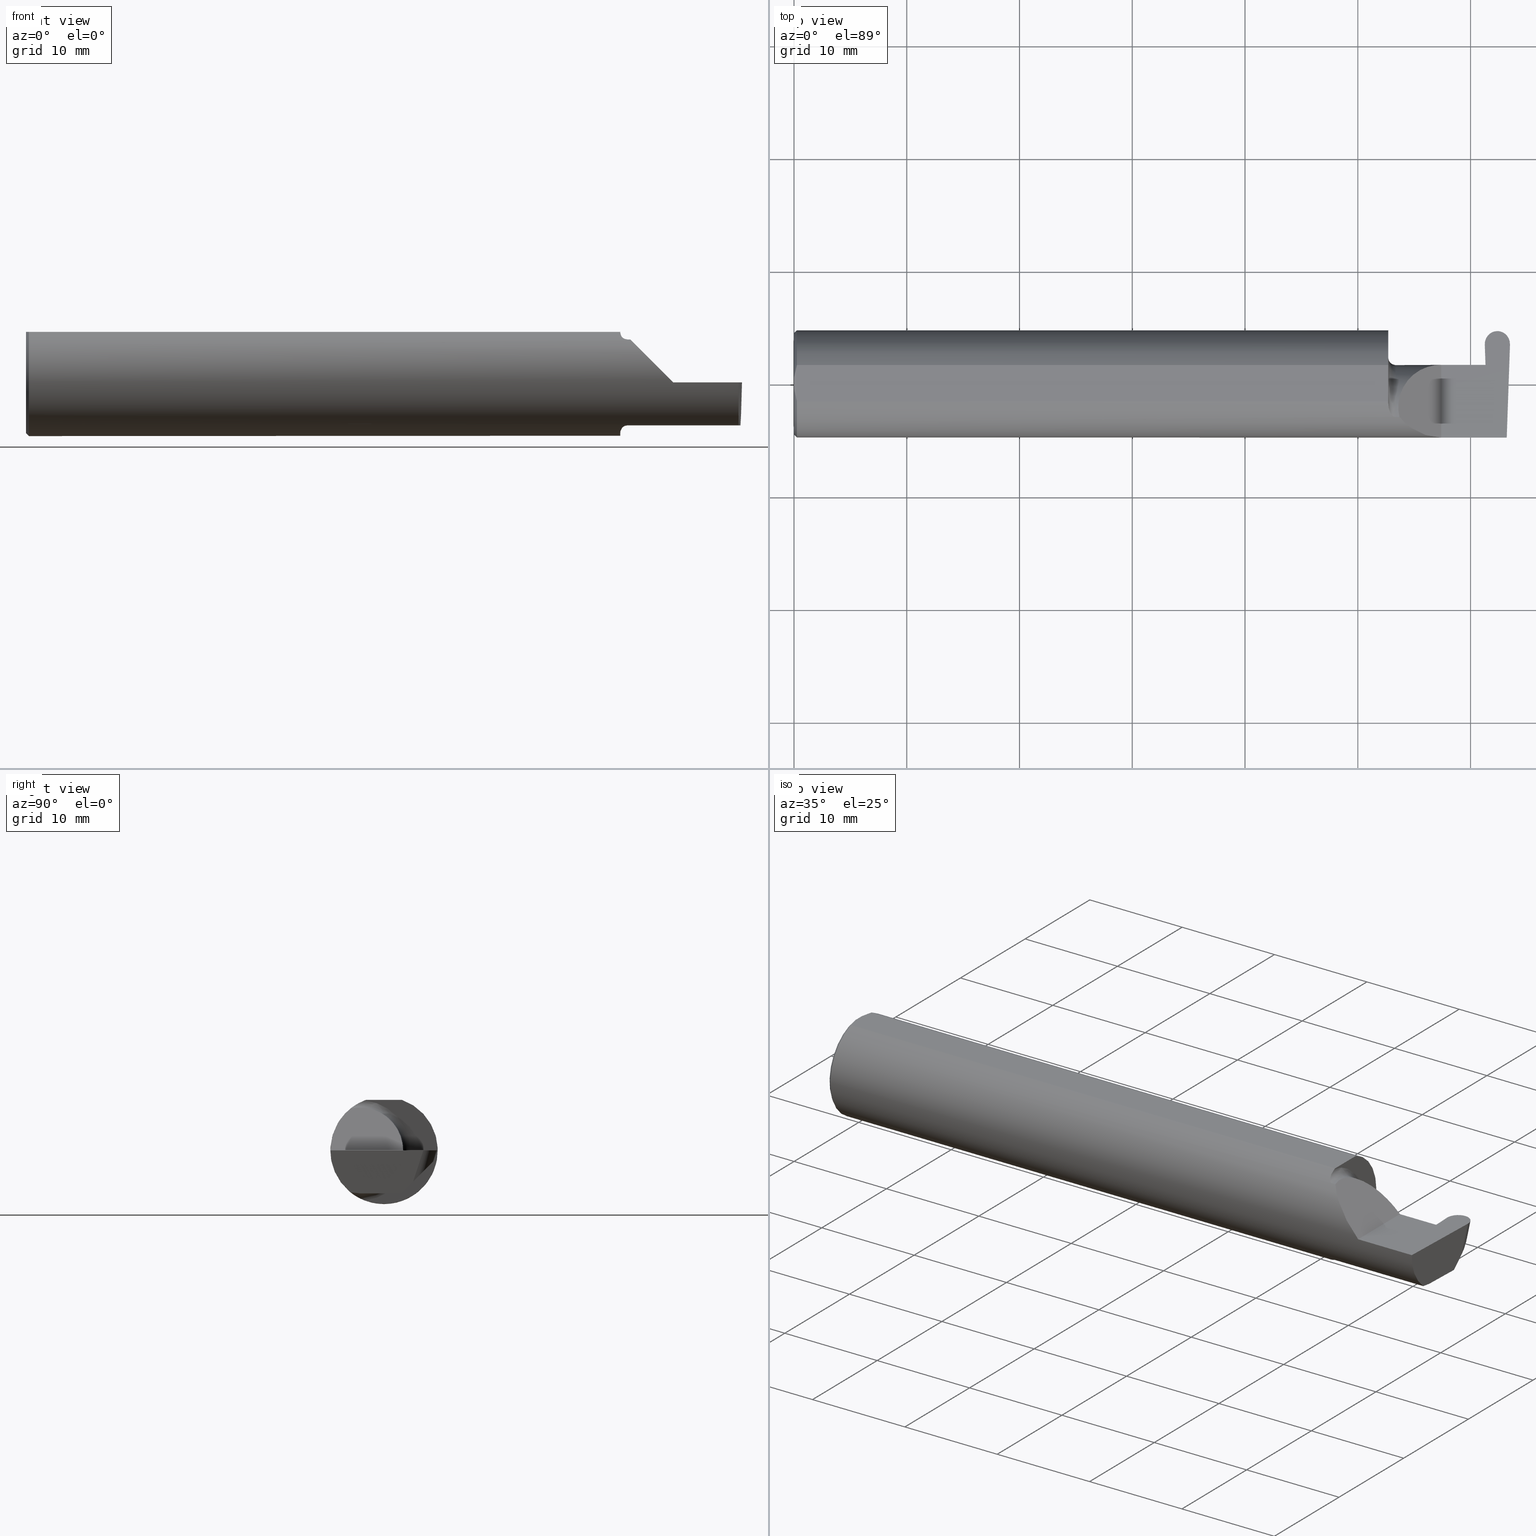
[diagram: canonical four-view strip — front | top / right | iso, engineering-drawing reading convention]
A machine part, canonical four-view strip (front | top / right | iso — engineering-drawing reading convention). The complete STEP part file that produces these views, byte-faithful:
ISO-10303-21;
HEADER;
FILE_DESCRIPTION (( 'STEP AP203' ),
    '1' );
FILE_NAME ('222191-GFR087-6.STEP',
    '2024-06-28T18:14:54',
    ( '' ),
    ( '' ),
    'SwSTEP 2.0',
    'SolidWorks 2024',
    '' );
FILE_SCHEMA (( 'CONFIG_CONTROL_DESIGN' ));
ENDSEC;

DATA;
#1 = EDGE_LOOP ( 'NONE', ( #204, #426, #313, #60, #416, #489 ) ) ;
#2 = APPROVAL_ROLE ( '' ) ;
#3 = CARTESIAN_POINT ( 'NONE',  ( 2.075000000000000178, 0.000000000000000000, 0.000000000000000000 ) ) ;
#4 = VERTEX_POINT ( 'NONE', #648 ) ;
#5 = VECTOR ( 'NONE', #589, 39.37007874015748143 ) ;
#6 = FACE_OUTER_BOUND ( 'NONE', #680, .T. ) ;
#7 = EDGE_CURVE ( 'NONE', #435, #216, #571, .T. ) ;
#8 = CYLINDRICAL_SURFACE ( 'NONE', #538, 0.1500000000000000500 ) ;
#9 = DIRECTION ( 'NONE',  ( 0.000000000000000000, -0.7071067811865516806, 0.7071067811865434649 ) ) ;
#10 = DIRECTION ( 'NONE',  ( -0.03701744261649800999, 0.7066221440565398915, 0.7066221440565479961 ) ) ;
#11 =( BOUNDED_CURVE ( )  B_SPLINE_CURVE ( 3, ( #493, #221, #659, #61 ),
 .UNSPECIFIED., .F., .T. ) 
 B_SPLINE_CURVE_WITH_KNOTS ( ( 4, 4 ),
 ( 4.712388980384686121, 4.728033103810989068 ),
 .UNSPECIFIED. ) 
 CURVE ( )  GEOMETRIC_REPRESENTATION_ITEM ( )  RATIONAL_B_SPLINE_CURVE ( ( 1.000000000000000000, 0.9999796052208393959, 0.9999796052208393959, 1.000000000000000000 ) ) 
 REPRESENTATION_ITEM ( '' )  );
#12 = VECTOR ( 'NONE', #194, 39.37007874015748143 ) ;
#13 = ADVANCED_FACE ( 'NONE', ( #322 ), #546, .F. ) ;
#14 = CARTESIAN_POINT ( 'NONE',  ( 2.499906297085412898, 0.1370998259008695541, 0.000000000000000000 ) ) ;
#15 = PERSON ( 'UNSPECIFIED', 'UNSPECIFIED', 'UNSPECIFIED', ('UNSPECIFIED'), ('UNSPECIFIED'), ('UNSPECIFIED') ) ;
#16 = CARTESIAN_POINT ( 'NONE',  ( 2.074999999999999289, -0.07367581953296699349, 0.1723443821957854893 ) ) ;
#17 = ORIENTED_EDGE ( 'NONE', *, *, #529, .F. ) ;
#18 = CARTESIAN_POINT ( 'NONE',  ( 2.481911186719436557, 0.1716605914559111712, -0.03864246008723843523 ) ) ;
#19 = CARTESIAN_POINT ( 'NONE',  ( 2.260000000000000231, 0.06665000000000002867, 5.204748896376251932E-17 ) ) ;
#20 = ORIENTED_EDGE ( 'NONE', *, *, #71, .F. ) ;
#21 = CONICAL_SURFACE ( 'NONE', #247, 0.1773500000000005072, 0.7853981633974551624 ) ;
#22 = VECTOR ( 'NONE', #610, 39.37007874015748854 ) ;
#23 = CARTESIAN_POINT ( 'NONE',  ( 2.488815404197634251, -0.1061291577212408049, -0.1486999626928446339 ) ) ;
#24 = CARTESIAN_POINT ( 'NONE',  ( 2.075000000000000178, 0.1873499999999999055, 0.000000000000000000 ) ) ;
#25 = ADVANCED_FACE ( 'NONE', ( #6 ), #551, .T. ) ;
#26 = ORIENTED_EDGE ( 'NONE', *, *, #690, .F. ) ;
#27 = CARTESIAN_POINT ( 'NONE',  ( 2.496782013450319582, 0.1018667288808076665, -0.1084363226623427101 ) ) ;
#28 = LINE ( 'NONE', #593, #583 ) ;
#29 = ORIENTED_EDGE ( 'NONE', *, *, #62, .T. ) ;
#30 = CARTESIAN_POINT ( 'NONE',  ( 2.075000000000000178, 0.06655862405286419592, -0.005234924505381327239 ) ) ;
#31 = CARTESIAN_POINT ( 'NONE',  ( 2.075000000000000178, -0.06851976604679065053, -0.1743704796142198643 ) ) ;
#32 = ORIENTED_EDGE ( 'NONE', *, *, #543, .F. ) ;
#33 = DIRECTION ( 'NONE',  ( 0.9998367324388628408, 0.0003153570480505056822, 0.01806679318280295793 ) ) ;
#34 = EDGE_CURVE ( 'NONE', #684, #104, #383, .T. ) ;
#35 = AXIS2_PLACEMENT_3D ( 'NONE', #619, #74, #131 ) ;
#36 = CARTESIAN_POINT ( 'NONE',  ( 2.075358271039144054, -0.07873626113568081564, -0.1700887912276895508 ) ) ;
#37 = ORIENTED_EDGE ( 'NONE', *, *, #370, .F. ) ;
#38 = CARTESIAN_POINT ( 'NONE',  ( 2.411832552795360574, 0.1390138764844879860, 0.000000000000000000 ) ) ;
#39 = B_SPLINE_CURVE_WITH_KNOTS ( 'NONE', 3,
 ( #676, #615, #394, #77 ),
 .UNSPECIFIED., .F., .F.,
 ( 4, 4 ),
 ( 0.000000000000000000, 1.000000000000000000 ),
 .UNSPECIFIED. ) ;
#40 = DIRECTION ( 'NONE',  ( 0.000000000000000000, 0.000000000000000000, 1.000000000000000000 ) ) ;
#41 = CARTESIAN_POINT ( 'NONE',  ( 2.415998328610626800, 0.06357628547474560021, -0.09063792740366215239 ) ) ;
#42 = DATE_AND_TIME ( #98, #137 ) ;
#43 = CARTESIAN_POINT ( 'NONE',  ( 0.000000000000000000, 0.000000000000000000, 0.000000000000000000 ) ) ;
#44 = ORIENTED_EDGE ( 'NONE', *, *, #222, .F. ) ;
#45 = EDGE_CURVE ( 'NONE', #46, #203, #651, .T. ) ;
#46 = VERTEX_POINT ( 'NONE', #14 ) ;
#47 = COORDINATED_UNIVERSAL_TIME_OFFSET ( 8, 0, .BEHIND. ) ;
#48 = ORGANIZATION ( 'UNSPECIFIED', 'UNSPECIFIED', '' ) ;
#49 = VECTOR ( 'NONE', #444, 39.37007874015748143 ) ;
#50 = DIMENSIONAL_EXPONENTS ( 1.000000000000000000, 0.000000000000000000, 0.000000000000000000, 0.000000000000000000, 0.000000000000000000, 0.000000000000000000, 0.000000000000000000 ) ;
#51 = CARTESIAN_POINT ( 'NONE',  ( 2.455849646417702203, 0.1388183738650295151, 0.001331749772420890180 ) ) ;
#52 = ORIENTED_EDGE ( 'NONE', *, *, #87, .F. ) ;
#53 = ORIENTED_EDGE ( 'NONE', *, *, #465, .T. ) ;
#54 = PERSON_AND_ORGANIZATION ( #15, #48 ) ;
#55 = DIRECTION ( 'NONE',  ( -0.03489949670249319069, -0.9993908270190959842, 0.000000000000000000 ) ) ;
#56 = ORIENTED_EDGE ( 'NONE', *, *, #87, .T. ) ;
#57 = VERTEX_POINT ( 'NONE', #376 ) ;
#58 = COORDINATED_UNIVERSAL_TIME_OFFSET ( 8, 0, .BEHIND. ) ;
#59 = LINE ( 'NONE', #565, #290 ) ;
#60 = ORIENTED_EDGE ( 'NONE', *, *, #68, .T. ) ;
#61 = CARTESIAN_POINT ( 'NONE',  ( 2.455902844999999779, 0.1722946655495198598, -0.03800838599362974662 ) ) ;
#62 = EDGE_CURVE ( 'NONE', #84, #590, #170, .T. ) ;
#63 = TOROIDAL_SURFACE ( 'NONE', #374, 0.1749999999999999889, 0.02499999999999993894 ) ;
#64 =( BOUNDED_CURVE ( )  B_SPLINE_CURVE ( 3, ( #124, #484, #375, #558 ),
 .UNSPECIFIED., .F., .T. ) 
 B_SPLINE_CURVE_WITH_KNOTS ( ( 4, 4 ),
 ( 6.055147272130142255, 7.853981633974482790 ),
 .UNSPECIFIED. ) 
 CURVE ( )  GEOMETRIC_REPRESENTATION_ITEM ( )  RATIONAL_B_SPLINE_CURVE ( ( 1.000000000000000000, 0.7480442670255268434, 0.7480442670255268434, 1.000000000000000000 ) ) 
 REPRESENTATION_ITEM ( '' )  );
#65 = DIRECTION ( 'NONE',  ( 0.000000000000000000, 0.000000000000000000, -1.000000000000000000 ) ) ;
#66 = CARTESIAN_POINT ( 'NONE',  ( 2.497044125482537957, 0.1068701584290903256, -0.1034328931140599817 ) ) ;
#67 = CARTESIAN_POINT ( 'NONE',  ( 0.000000000000000000, 0.01880691362239451242, 0.1763499999999999235 ) ) ;
#68 = EDGE_CURVE ( 'NONE', #621, #84, #331, .T. ) ;
#69 = LINE ( 'NONE', #498, #391 ) ;
#70 = LINE ( 'NONE', #379, #318 ) ;
#71 = EDGE_CURVE ( 'NONE', #621, #46, #611, .T. ) ;
#72 = CARTESIAN_POINT ( 'NONE',  ( 2.097161949849308371, -0.1172600179964061184, 0.1461167706989260073 ) ) ;
#73 = ORIENTED_EDGE ( 'NONE', *, *, #7, .T. ) ;
#74 = DIRECTION ( 'NONE',  ( -0.7071067811865441310, 0.000000000000000000, -0.7071067811865510144 ) ) ;
#75 = CARTESIAN_POINT ( 'NONE',  ( 2.456309424548497322, 0.1846500000000000363, 0.000000000000000000 ) ) ;
#76 = ORIENTED_EDGE ( 'NONE', *, *, #650, .T. ) ;
#77 = CARTESIAN_POINT ( 'NONE',  ( 2.405238904245578624, 0.06664999999999991764, 0.000000000000000000 ) ) ;
#78 = EDGE_CURVE ( 'NONE', #167, #57, #207, .T. ) ;
#79 = CARTESIAN_POINT ( 'NONE',  ( 2.410932386210230760, 0.1647912748130948291, 1.110789957736176039E-17 ) ) ;
#80 = ORIENTED_EDGE ( 'NONE', *, *, #552, .F. ) ;
#81 = AXIS2_PLACEMENT_3D ( 'NONE', #3, #348, #301 ) ;
#82 = CARTESIAN_POINT ( 'NONE',  ( 2.075000000000000178, 0.06665000000000002867, 5.204748896376251932E-17 ) ) ;
#83 = CARTESIAN_POINT ( 'NONE',  ( 2.077945243422983701, -0.09312071749437419999, 0.1626553472577906279 ) ) ;
#84 = VERTEX_POINT ( 'NONE', #492 ) ;
#85 = DIRECTION ( 'NONE',  ( 0.000000000000000000, -0.9998476951563912696, 0.01745240643728358451 ) ) ;
#86 = CARTESIAN_POINT ( 'NONE',  ( -0.001039370078740541395, 0.1846500000000000363, 0.000000000000000000 ) ) ;
#87 = EDGE_CURVE ( 'NONE', #129, #414, #11, .T. ) ;
#88 = VERTEX_POINT ( 'NONE', #67 ) ;
#89 = CARTESIAN_POINT ( 'NONE',  ( 0.000000000000000000, 0.000000000000000000, -0.1773500000000005072 ) ) ;
#90 = CARTESIAN_POINT ( 'NONE',  ( 0.000000000000000000, -0.06325108694718235836, 0.1763499999999999235 ) ) ;
#91 = ORIENTED_EDGE ( 'NONE', *, *, #494, .F. ) ;
#92 = APPROVAL_DATE_TIME ( #580, #618 ) ;
#93 = FACE_OUTER_BOUND ( 'NONE', #447, .T. ) ;
#94 = CC_DESIGN_PERSON_AND_ORGANIZATION_ASSIGNMENT ( #524, #368, ( #467 ) ) ;
#95 = VECTOR ( 'NONE', #324, 39.37007874015748143 ) ;
#96 = CARTESIAN_POINT ( 'NONE',  ( -0.001039370078740541395, 0.1846500000000000363, 0.000000000000000000 ) ) ;
#97 = ORIENTED_EDGE ( 'NONE', *, *, #412, .T. ) ;
#98 = CALENDAR_DATE ( 2024, 28, 6 ) ;
#99 = CARTESIAN_POINT ( 'NONE',  ( 0.001595548104417217512, -0.03385300050298979679, 0.1763499999999999235 ) ) ;
#100 = ORIENTED_EDGE ( 'NONE', *, *, #552, .T. ) ;
#101 =( NAMED_UNIT ( * ) PLANE_ANGLE_UNIT ( ) SI_UNIT ( $, .RADIAN. ) );
#102 = EDGE_CURVE ( 'NONE', #229, #564, #224, .T. ) ;
#103 = DIRECTION ( 'NONE',  ( -0.9992386149554828290, 0.03489418134010589118, 0.01745240643728358451 ) ) ;
#104 = VERTEX_POINT ( 'NONE', #556 ) ;
#105 = ORIENTED_EDGE ( 'NONE', *, *, #78, .F. ) ;
#106 = PERSON_AND_ORGANIZATION ( #15, #48 ) ;
#107 = VECTOR ( 'NONE', #508, 39.37007874015748143 ) ;
#108 = AXIS2_PLACEMENT_3D ( 'NONE', #173, #440, #660 ) ;
#109 = CARTESIAN_POINT ( 'NONE',  ( 2.077960551809339584, -0.09317341542745739835, -0.1626248379125196653 ) ) ;
#110 = ORIENTED_EDGE ( 'NONE', *, *, #515, .T. ) ;
#111 = APPLICATION_PROTOCOL_DEFINITION ( 'international standard', 'config_control_design', 1994, #448 ) ;
#112 = CARTESIAN_POINT ( 'NONE',  ( 2.414359555045604289, 0.06664999999999991764, -9.645561665750322649E-21 ) ) ;
#113 = ORIENTED_EDGE ( 'NONE', *, *, #274, .F. ) ;
#114 = DIRECTION ( 'NONE',  ( -1.000000000000000000, -0.000000000000000000, -0.000000000000000000 ) ) ;
#115 = ADVANCED_FACE ( 'NONE', ( #270 ), #8, .T. ) ;
#116 = CARTESIAN_POINT ( 'NONE',  ( 2.075000000000000178, 0.000000000000000000, 0.000000000000000000 ) ) ;
#117 = APPROVAL ( #158, 'UNSPECIFIED' ) ;
#118 = VECTOR ( 'NONE', #666, 39.37007874015748143 ) ;
#119 = AXIS2_PLACEMENT_3D ( 'NONE', #442, #495, #665 ) ;
#120 = CARTESIAN_POINT ( 'NONE',  ( 2.489884857891535574, -0.07485379416751689052, -0.1500000000000000500 ) ) ;
#121 = EDGE_CURVE ( 'NONE', #203, #129, #70, .T. ) ;
#122 = DIRECTION ( 'NONE',  ( -1.000000000000000000, -5.069406624455083742E-17, -0.000000000000000000 ) ) ;
#123 = CARTESIAN_POINT ( 'NONE',  ( 2.499922542640338197, 0.1372830298860648612, 0.0005638438891804186011 ) ) ;
#124 = CARTESIAN_POINT ( 'NONE',  ( 2.113883229301068312, -0.1172600179964006784, 0.1461167706989302539 ) ) ;
#125 = CARTESIAN_POINT ( 'NONE',  ( 2.081287624083520527, -0.1021858045380145269, 0.1571187174372875861 ) ) ;
#126 = AXIS2_PLACEMENT_3D ( 'NONE', #43, #356, #371 ) ;
#127 = CARTESIAN_POINT ( 'NONE',  ( 2.202189699843949189, -0.1873500000000000998, 0.05781030015605102129 ) ) ;
#128 = PLANE ( 'NONE',  #639 ) ;
#129 = VERTEX_POINT ( 'NONE', #276 ) ;
#130 = EDGE_CURVE ( 'NONE', #531, #636, #404, .T. ) ;
#131 = DIRECTION ( 'NONE',  ( -0.7071067811865509034, 0.000000000000000000, 0.7071067811865440200 ) ) ;
#132 = CYLINDRICAL_SURFACE ( 'NONE', #582, 0.04399999999999999051 ) ;
#133 = VERTEX_POINT ( 'NONE', #603 ) ;
#134 = CARTESIAN_POINT ( 'NONE',  ( 2.414359555045604289, 0.06664999999999991764, 0.000000000000000000 ) ) ;
#135 = CARTESIAN_POINT ( 'NONE',  ( 0.001616639753276218755, 0.03405189565400963680, 0.1763499999999999235 ) ) ;
#136 = ORIENTED_EDGE ( 'NONE', *, *, #144, .T. ) ;
#137 = LOCAL_TIME ( 11, 14, 54.00000000000000000, #316 ) ;
#138 = LINE ( 'NONE', #200, #686 ) ;
#139 = EDGE_CURVE ( 'NONE', #4, #405, #438, .T. ) ;
#140 = PRODUCT_DEFINITION_SHAPE ( 'NONE', 'NONE',  #467 ) ;
#141 = LINE ( 'NONE', #459, #510 ) ;
#142 = EDGE_LOOP ( 'NONE', ( #17, #656, #372, #617 ) ) ;
#143 = CARTESIAN_POINT ( 'NONE',  ( 0.000000000000000000, 0.000000000000000000, -0.1773500000000005072 ) ) ;
#144 = EDGE_CURVE ( 'NONE', #157, #246, #382, .T. ) ;
#145 = DIRECTION ( 'NONE',  ( -1.000000000000000000, -5.069406624455083742E-17, -0.000000000000000000 ) ) ;
#146 = SECURITY_CLASSIFICATION_LEVEL ( 'unclassified' ) ;
#147 = CARTESIAN_POINT ( 'NONE',  ( 2.489588163846105484, -0.08335000000000003517, -0.1500000000000000500 ) ) ;
#148 = FACE_OUTER_BOUND ( 'NONE', #300, .T. ) ;
#149 =( NAMED_UNIT ( * ) SI_UNIT ( $, .STERADIAN. ) SOLID_ANGLE_UNIT ( ) );
#150 = CARTESIAN_POINT ( 'NONE',  ( 2.417363697998881733, -2.354248658836814556, -0.1239957194858760936 ) ) ;
#151 = AXIS2_PLACEMENT_3D ( 'NONE', #220, #9, #606 ) ;
#152 = CARTESIAN_POINT ( 'NONE',  ( 2.081304331342287650, -0.1022198306720689814, -0.1570962426853819704 ) ) ;
#153 = ORIENTED_EDGE ( 'NONE', *, *, #102, .F. ) ;
#154 = CALENDAR_DATE ( 2024, 28, 6 ) ;
#155 = EDGE_CURVE ( 'NONE', #133, #104, #669, .T. ) ;
#156 = FACE_OUTER_BOUND ( 'NONE', #542, .T. ) ;
#157 = VERTEX_POINT ( 'NONE', #327 ) ;
#158 = APPROVAL_STATUS ( 'not_yet_approved' ) ;
#159 = UNCERTAINTY_MEASURE_WITH_UNIT (LENGTH_MEASURE( 1.000000000000000082E-05 ), #162, 'distance_accuracy_value', 'NONE');
#160 = CARTESIAN_POINT ( 'NONE',  ( 2.090028532764138358, -0.1137241120808234196, -0.1488947809299404346 ) ) ;
#161 = ORIENTED_EDGE ( 'NONE', *, *, #78, .T. ) ;
#162 =( CONVERSION_BASED_UNIT ( 'INCH', #457 ) LENGTH_UNIT ( ) NAMED_UNIT ( #50 ) );
#163 = AXIS2_PLACEMENT_3D ( 'NONE', #38, #251, #629 ) ;
#164 = ADVANCED_BREP_SHAPE_REPRESENTATION ( '222191-GFR087-6', ( #264, #674 ), #433 ) ;
#165 = CARTESIAN_POINT ( 'NONE',  ( 2.455902844999999779, 0.1722946655495198598, -0.03800838599362974662 ) ) ;
#166 = ADVANCED_FACE ( 'NONE', ( #184 ), #627, .T. ) ;
#167 = VERTEX_POINT ( 'NONE', #286 ) ;
#168 = DIRECTION ( 'NONE',  ( 0.000000000000000000, 0.000000000000000000, -1.000000000000000000 ) ) ;
#169 = ORIENTED_EDGE ( 'NONE', *, *, #34, .F. ) ;
#170 = LINE ( 'NONE', #120, #191 ) ;
#171 = CARTESIAN_POINT ( 'NONE',  ( 2.411832552795360574, 0.1390138764844879860, 0.000000000000000000 ) ) ;
#172 = LOCAL_TIME ( 11, 14, 54.00000000000000000, #58 ) ;
#173 = CARTESIAN_POINT ( 'NONE',  ( 0.000000000000000000, 0.000000000000000000, 0.000000000000000000 ) ) ;
#174 = CARTESIAN_POINT ( 'NONE',  ( 3.749399456654646757E-32, -0.1873499999999999610, 3.061616997868383634E-16 ) ) ;
#175 = CARTESIAN_POINT ( 'NONE',  ( 2.260000000000000231, -0.1873499999999999888, 2.939152317953647352E-17 ) ) ;
#176 = CARTESIAN_POINT ( 'NONE',  ( 0.000000000000000000, 0.01880691362239451242, 0.1763499999999999235 ) ) ;
#177 = DIRECTION ( 'NONE',  ( -1.000000000000000000, -0.000000000000000000, -0.000000000000000000 ) ) ;
#178 = CARTESIAN_POINT ( 'NONE',  ( 2.075353553376444893, -0.07868116735658677030, 0.1701139256562800295 ) ) ;
#179 = EDGE_CURVE ( 'NONE', #129, #133, #677, .T. ) ;
#180 = AXIS2_PLACEMENT_3D ( 'NONE', #150, #33, #418 ) ;
#181 = ORIENTED_EDGE ( 'NONE', *, *, #238, .T. ) ;
#182 = DIRECTION ( 'NONE',  ( -1.000000000000000000, -0.000000000000000000, -0.000000000000000000 ) ) ;
#183 = ORIENTED_EDGE ( 'NONE', *, *, #155, .T. ) ;
#184 = FACE_OUTER_BOUND ( 'NONE', #267, .T. ) ;
#185 = ORIENTED_EDGE ( 'NONE', *, *, #635, .T. ) ;
#186 = CARTESIAN_POINT ( 'NONE',  ( 2.487566561880238947, -0.1873499999999999610, -0.05781030015605118089 ) ) ;
#187 = EDGE_CURVE ( 'NONE', #531, #250, #232, .T. ) ;
#188 = CARTESIAN_POINT ( 'NONE',  ( 0.000000000000000000, 0.000000000000000000, 0.000000000000000000 ) ) ;
#189 = VERTEX_POINT ( 'NONE', #242 ) ;
#190 = AXIS2_PLACEMENT_3D ( 'NONE', #51, #630, #208 ) ;
#191 = VECTOR ( 'NONE', #226, 39.37007874015748143 ) ;
#192 = CARTESIAN_POINT ( 'NONE',  ( 2.488471823259917226, -0.1172600179964005951, -0.1461167706989303927 ) ) ;
#193 = EDGE_CURVE ( 'NONE', #46, #4, #141, .T. ) ;
#194 = DIRECTION ( 'NONE',  ( 1.000000000000000000, 0.000000000000000000, 0.000000000000000000 ) ) ;
#195 = VERTEX_POINT ( 'NONE', #299 ) ;
#196 = LINE ( 'NONE', #82, #107 ) ;
#197 = CARTESIAN_POINT ( 'NONE',  ( 0.000000000000000000, 0.000000000000000000, 0.000000000000000000 ) ) ;
#198 = ORIENTED_EDGE ( 'NONE', *, *, #369, .T. ) ;
#199 = PERSON_AND_ORGANIZATION_ROLE ( 'design_owner' ) ;
#200 = CARTESIAN_POINT ( 'NONE',  ( 0.000000000000000000, 0.1873499999999998500, 0.1763499999999999235 ) ) ;
#201 =( BOUNDED_CURVE ( )  B_SPLINE_CURVE ( 3, ( #577, #401, #186, #298 ),
 .UNSPECIFIED., .F., .F. ) 
 B_SPLINE_CURVE_WITH_KNOTS ( ( 4, 4 ),
 ( 5.852427379562185727, 6.746954780470634461 ),
 .UNSPECIFIED. ) 
 CURVE ( )  GEOMETRIC_REPRESENTATION_ITEM ( )  RATIONAL_B_SPLINE_CURVE ( ( 1.000000000000000000, 0.9344226172588800949, 0.9344226172588800949, 1.000000000000000000 ) ) 
 REPRESENTATION_ITEM ( '' )  );
#202 = PLANE ( 'NONE',  #450 ) ;
#203 = VERTEX_POINT ( 'NONE', #75 ) ;
#204 = ORIENTED_EDGE ( 'NONE', *, *, #102, .T. ) ;
#205 = COORDINATED_UNIVERSAL_TIME_OFFSET ( 8, 0, .BEHIND. ) ;
#206 = APPROVAL_PERSON_ORGANIZATION ( #106, #547, #632 ) ;
#207 = CIRCLE ( 'NONE', #479, 0.1873499999999999888 ) ;
#208 = DIRECTION ( 'NONE',  ( 0.000000000000000000, 0.9510565162951533091, -0.3090169943749481729 ) ) ;
#209 = ORIENTED_EDGE ( 'NONE', *, *, #690, .T. ) ;
#210 = VERTEX_POINT ( 'NONE', #570 ) ;
#211 = DIRECTION ( 'NONE',  ( -1.000000000000000000, -0.000000000000000000, -0.000000000000000000 ) ) ;
#212 = VERTEX_POINT ( 'NONE', #291 ) ;
#213 = PERSON_AND_ORGANIZATION_ROLE ( 'classification_officer' ) ;
#214 = DESIGN_CONTEXT ( 'detailed design', #448, 'design' ) ;
#215 = CARTESIAN_POINT ( 'NONE',  ( 2.414359555045604289, 0.06664999999999991764, -9.645561665750322649E-21 ) ) ;
#216 = VERTEX_POINT ( 'NONE', #511 ) ;
#217 = CARTESIAN_POINT ( 'NONE',  ( 2.100000000000000089, -0.08334999999999997966, 0.000000000000000000 ) ) ;
#218 = ORIENTED_EDGE ( 'NONE', *, *, #238, .F. ) ;
#219 = DIRECTION ( 'NONE',  ( 0.000000000000000000, -1.000000000000000000, 0.000000000000000000 ) ) ;
#220 = CARTESIAN_POINT ( 'NONE',  ( -0.001039370078740541395, 0.1723030515431495657, -0.03799999999999999906 ) ) ;
#221 = CARTESIAN_POINT ( 'NONE',  ( 2.455902844999999779, 0.1774764172755834701, -0.02207801745350155415 ) ) ;
#222 = EDGE_CURVE ( 'NONE', #88, #57, #431, .T. ) ;
#223 = AXIS2_PLACEMENT_3D ( 'NONE', #116, #500, #670 ) ;
#224 = LINE ( 'NONE', #668, #550 ) ;
#225 = DIRECTION ( 'NONE',  ( 0.000000000000000000, 0.000000000000000000, -1.000000000000000000 ) ) ;
#226 = DIRECTION ( 'NONE',  ( -0.03489949670249319069, -0.9993908270190959842, 0.000000000000000000 ) ) ;
#227 = CARTESIAN_POINT ( 'NONE',  ( 0.000000000000000000, 0.000000000000000000, 0.000000000000000000 ) ) ;
#228 = DIRECTION ( 'NONE',  ( 1.000000000000000000, 5.069406624455083742E-17, 0.000000000000000000 ) ) ;
#229 = VERTEX_POINT ( 'NONE', #518 ) ;
#230 = DIRECTION ( 'NONE',  ( 1.000000000000000000, -0.000000000000000000, -0.000000000000000000 ) ) ;
#231 = APPROVAL_PERSON_ORGANIZATION ( #311, #117, #2 ) ;
#232 = LINE ( 'NONE', #683, #699 ) ;
#233 = CC_DESIGN_PERSON_AND_ORGANIZATION_ASSIGNMENT ( #693, #199, ( #559 ) ) ;
#234 = AXIS2_PLACEMENT_3D ( 'NONE', #385, #437, #605 ) ;
#235 = EDGE_LOOP ( 'NONE', ( #535, #243, #198 ) ) ;
#236 = FACE_OUTER_BOUND ( 'NONE', #696, .T. ) ;
#237 = CARTESIAN_POINT ( 'NONE',  ( 0.005155213631852355663, 0.04890080824240217866, 0.1763499999999999235 ) ) ;
#238 = EDGE_CURVE ( 'NONE', #88, #575, #608, .T. ) ;
#239 = B_SPLINE_CURVE_WITH_KNOTS ( 'NONE', 3,
 ( #388, #16, #178, #613, #83, #125, #451, #295, #337, #560, #72, #392 ),
 .UNSPECIFIED., .F., .F.,
 ( 4, 2, 2, 2, 2, 4 ),
 ( 4.423516731080748054E-05, 0.0004615475116586697829, 0.0008788598560065321056, 0.001296172200354394483, 0.001504828372528325617, 0.001713484544702256751 ),
 .UNSPECIFIED. ) ;
#240 = ORIENTED_EDGE ( 'NONE', *, *, #384, .T. ) ;
#241 = LINE ( 'NONE', #134, #462 ) ;
#242 = CARTESIAN_POINT ( 'NONE',  ( 2.075000000000000178, -0.06325108694718283020, 0.1763499999999999235 ) ) ;
#243 = ORIENTED_EDGE ( 'NONE', *, *, #179, .T. ) ;
#244 = DIRECTION ( 'NONE',  ( -1.000000000000000000, -5.069406624455083742E-17, -0.000000000000000000 ) ) ;
#245 = DIRECTION ( 'NONE',  ( 0.000000000000000000, -0.9510565162951534202, 0.3090169943749482284 ) ) ;
#246 = VERTEX_POINT ( 'NONE', #31 ) ;
#247 = AXIS2_PLACEMENT_3D ( 'NONE', #197, #540, #256 ) ;
#248 = CARTESIAN_POINT ( 'NONE',  ( 2.489189135516857831, -0.09477667630339410565, -0.1500000000000000500 ) ) ;
#249 = CARTESIAN_POINT ( 'NONE',  ( 2.097174967710398796, -0.1172600179964006506, -0.1461167706989303927 ) ) ;
#250 = VERTEX_POINT ( 'NONE', #574 ) ;
#251 = DIRECTION ( 'NONE',  ( 0.9992386149554828290, 0.03489418134010670303, 0.01745240643728358798 ) ) ;
#252 = ADVANCED_FACE ( 'NONE', ( #403 ), #128, .F. ) ;
#253 = CARTESIAN_POINT ( 'NONE',  ( 2.405238904245578624, 0.06664999999999991764, 0.000000000000000000 ) ) ;
#254 = ORIENTED_EDGE ( 'NONE', *, *, #650, .F. ) ;
#255 = ORIENTED_EDGE ( 'NONE', *, *, #187, .T. ) ;
#256 = DIRECTION ( 'NONE',  ( 0.000000000000000000, 0.000000000000000000, -1.000000000000000000 ) ) ;
#257 = EDGE_LOOP ( 'NONE', ( #594, #218, #409, #105 ) ) ;
#258 = ORIENTED_EDGE ( 'NONE', *, *, #179, .F. ) ;
#259 = AXIS2_PLACEMENT_3D ( 'NONE', #695, #641, #168 ) ;
#260 = CARTESIAN_POINT ( 'NONE',  ( 0.000000000000000000, 0.000000000000000000, 0.000000000000000000 ) ) ;
#261 = VERTEX_POINT ( 'NONE', #19 ) ;
#262 = ORIENTED_EDGE ( 'NONE', *, *, #461, .F. ) ;
#263 = EDGE_CURVE ( 'NONE', #157, #531, #239, .T. ) ;
#264 = MANIFOLD_SOLID_BREP ( 'Radii', #423 ) ;
#265 = CARTESIAN_POINT ( 'NONE',  ( 2.499973137204639428, 0.1390138764844880415, 0.000000000000000000 ) ) ;
#266 = EDGE_LOOP ( 'NONE', ( #32, #310, #283 ) ) ;
#267 = EDGE_LOOP ( 'NONE', ( #53, #344, #425, #136 ) ) ;
#268 = LINE ( 'NONE', #215, #118 ) ;
#269 = ORIENTED_EDGE ( 'NONE', *, *, #345, .T. ) ;
#270 = FACE_OUTER_BOUND ( 'NONE', #485, .T. ) ;
#271 = CONICAL_SURFACE ( 'NONE', #126, 0.1773500000000005072, 0.7853981633974551624 ) ;
#272 = CARTESIAN_POINT ( 'NONE',  ( 2.499906297085412898, 0.1370998259008695541, 0.000000000000000000 ) ) ;
#273 = EDGE_CURVE ( 'NONE', #189, #210, #282, .T. ) ;
#274 = EDGE_CURVE ( 'NONE', #435, #195, #395, .T. ) ;
#275 = CARTESIAN_POINT ( 'NONE',  ( 2.500873303789769242, 0.1647912748130947180, 3.031548046095857169E-18 ) ) ;
#276 = CARTESIAN_POINT ( 'NONE',  ( 2.455902844999999779, 0.1800649307963962942, -0.01411139200474042545 ) ) ;
#277 = CARTESIAN_POINT ( 'NONE',  ( 2.496782013450319582, 0.1018667288808076665, -0.1084363226623427101 ) ) ;
#278 = CIRCLE ( 'NONE', #81, 0.1873499999999999888 ) ;
#279 = DIRECTION ( 'NONE',  ( 0.02739170151059986541, 0.3089010440752013031, 0.9506996579664918068 ) ) ;
#280 = ADVANCED_FACE ( 'NONE', ( #620 ), #132, .T. ) ;
#281 = DIRECTION ( 'NONE',  ( 0.02739170151060012562, -0.3089010440752013031, -0.9506996579664920288 ) ) ;
#282 = LINE ( 'NONE', #501, #336 ) ;
#283 = ORIENTED_EDGE ( 'NONE', *, *, #487, .T. ) ;
#284 = CARTESIAN_POINT ( 'NONE',  ( 2.417117327835069940, -0.08334999999999997966, -0.1500000000000000500 ) ) ;
#285 = CC_DESIGN_DATE_AND_TIME_ASSIGNMENT ( #644, #430, ( #505 ) ) ;
#286 = CARTESIAN_POINT ( 'NONE',  ( 0.009999999999999346217, 0.000000000000000000, -0.1873499999999999888 ) ) ;
#287 = LOCAL_TIME ( 11, 14, 54.00000000000000000, #205 ) ;
#288 = ORIENTED_EDGE ( 'NONE', *, *, #461, .T. ) ;
#289 = DIRECTION ( 'NONE',  ( 1.000000000000000000, 0.000000000000000000, -0.000000000000000000 ) ) ;
#290 = VECTOR ( 'NONE', #230, 39.37007874015748143 ) ;
#291 = CARTESIAN_POINT ( 'NONE',  ( 0.009999999999999346217, -0.06325108694718235836, 0.1763499999999999235 ) ) ;
#292 = ORIENTED_EDGE ( 'NONE', *, *, #155, .F. ) ;
#293 = PLANE ( 'NONE',  #180 ) ;
#294 = EDGE_CURVE ( 'NONE', #590, #435, #28, .T. ) ;
#295 = CARTESIAN_POINT ( 'NONE',  ( 2.088163223656403389, -0.1119926267047277602, 0.1502091925606063305 ) ) ;
#296 = PRODUCT_RELATED_PRODUCT_CATEGORY ( 'detail', '', ( #559 ) ) ;
#297 = ORIENTED_EDGE ( 'NONE', *, *, #635, .F. ) ;
#298 = CARTESIAN_POINT ( 'NONE',  ( 2.488576259503493926, -0.1873499999999999888, 0.000000000000000000 ) ) ;
#299 = CARTESIAN_POINT ( 'NONE',  ( 2.417072018435237002, 0.06030305154315079852, -0.1500000000000000500 ) ) ;
#300 = EDGE_LOOP ( 'NONE', ( #453, #181, #362 ) ) ;
#301 = DIRECTION ( 'NONE',  ( 0.000000000000000000, 1.000000000000000000, 0.000000000000000000 ) ) ;
#302 = CARTESIAN_POINT ( 'NONE',  ( 2.076843912362377864, -0.08846956905169085783, -0.1652353808078971531 ) ) ;
#303 = ORIENTED_EDGE ( 'NONE', *, *, #130, .F. ) ;
#304 = VECTOR ( 'NONE', #145, 39.37007874015748143 ) ;
#305 = DIRECTION ( 'NONE',  ( 1.000000000000000000, -0.000000000000000000, -0.000000000000000000 ) ) ;
#306 = ADVANCED_FACE ( 'NONE', ( #475 ), #271, .T. ) ;
#307 = FACE_OUTER_BOUND ( 'NONE', #624, .T. ) ;
#308 = DIRECTION ( 'NONE',  ( 1.000000000000000000, 0.000000000000000000, 0.000000000000000000 ) ) ;
#309 = DIRECTION ( 'NONE',  ( -1.224646799147353947E-16, 0.000000000000000000, -1.000000000000000000 ) ) ;
#310 = ORIENTED_EDGE ( 'NONE', *, *, #412, .F. ) ;
#311 = PERSON_AND_ORGANIZATION ( #15, #48 ) ;
#312 = PLANE ( 'NONE',  #497 ) ;
#313 = ORIENTED_EDGE ( 'NONE', *, *, #496, .T. ) ;
#314 = ADVANCED_FACE ( 'NONE', ( #307 ), #700, .T. ) ;
#315 = ORIENTED_EDGE ( 'NONE', *, *, #504, .F. ) ;
#316 = COORDINATED_UNIVERSAL_TIME_OFFSET ( 8, 0, .BEHIND. ) ;
#317 = VECTOR ( 'NONE', #488, 39.37007874015748143 ) ;
#318 = VECTOR ( 'NONE', #332, 39.37007874015748143 ) ;
#319 = ADVANCED_FACE ( 'NONE', ( #691 ), #202, .T. ) ;
#320 = CARTESIAN_POINT ( 'NONE',  ( 2.075000000000000178, -0.07368234487347195827, -0.1723418180300748392 ) ) ;
#321 = ADVANCED_FACE ( 'NONE', ( #156 ), #408, .F. ) ;
#322 = FACE_OUTER_BOUND ( 'NONE', #1, .T. ) ;
#323 = APPROVAL_DATE_TIME ( #539, #117 ) ;
#324 = DIRECTION ( 'NONE',  ( -0.01806954526206909148, 0.01744955702544859211, 0.9996844524616943506 ) ) ;
#325 = ORIENTED_EDGE ( 'NONE', *, *, #45, .F. ) ;
#326 = FACE_OUTER_BOUND ( 'NONE', #266, .T. ) ;
#327 = CARTESIAN_POINT ( 'NONE',  ( 2.075000000000000178, -0.06851976604679065053, 0.1743704796142198643 ) ) ;
#328 = ADVANCED_FACE ( 'NONE', ( #428 ), #312, .F. ) ;
#329 = LOCAL_TIME ( 11, 14, 54.00000000000000000, #410 ) ;
#330 = VECTOR ( 'NONE', #623, 39.37007874015748854 ) ;
#331 = LINE ( 'NONE', #66, #22 ) ;
#332 = DIRECTION ( 'NONE',  ( -0.02739170151059987582, -0.3089010440752013587, -0.9506996579664918068 ) ) ;
#333 = B_SPLINE_CURVE_WITH_KNOTS ( 'NONE', 3,
 ( #530, #249, #352, #160, #468, #578, #152, #109, #302, #36, #320, #646 ),
 .UNSPECIFIED., .F., .F.,
 ( 4, 2, 2, 2, 2, 4 ),
 ( 1.967976973726874814E-07, 0.0002120314145722239656, 0.0004238660314470752062, 0.0008475352651967909146, 0.001271204498946506460, 0.001694873732696222223 ),
 .UNSPECIFIED. ) ;
#334 = DIRECTION ( 'NONE',  ( 1.000000000000000000, 0.000000000000000000, 0.000000000000000000 ) ) ;
#335 = CARTESIAN_POINT ( 'NONE',  ( 2.405147528298442694, 0.06655862405286415429, -0.005234924505382105263 ) ) ;
#336 = VECTOR ( 'NONE', #446, 39.37007874015748143 ) ;
#337 = CARTESIAN_POINT ( 'NONE',  ( 2.090004157323697598, -0.1137044537483315743, 0.1489098419202428691 ) ) ;
#338 = CARTESIAN_POINT ( 'NONE',  ( 2.150065971957465738, -0.1623470442677541759, 0.1099340280425336741 ) ) ;
#339 = DIRECTION ( 'NONE',  ( -0.0003154085283454300553, 0.9999999502587288980, 0.000000000000000000 ) ) ;
#340 = EDGE_LOOP ( 'NONE', ( #473, #183, #169, #254, #516, #628, #358, #350, #653 ) ) ;
#341 = CARTESIAN_POINT ( 'NONE',  ( 2.429894503280563445, 0.1716605914559114487, -0.03864246008723814380 ) ) ;
#342 =( BOUNDED_CURVE ( )  B_SPLINE_CURVE ( 3, ( #192, #23, #248, #147 ),
 .UNSPECIFIED., .F., .F. ) 
 B_SPLINE_CURVE_WITH_KNOTS ( ( 4, 4 ),
 ( 0.8789888184544064620, 1.107026853503849440 ),
 .UNSPECIFIED. ) 
 CURVE ( )  GEOMETRIC_REPRESENTATION_ITEM ( )  RATIONAL_B_SPLINE_CURVE ( ( 1.000000000000000000, 0.9956712472009929815, 0.9956712472009929815, 1.000000000000000000 ) ) 
 REPRESENTATION_ITEM ( '' )  );
#343 = CARTESIAN_POINT ( 'NONE',  ( 2.454465662695322070, 0.1220110860126060043, -0.05039576335554842024 ) ) ;
#344 = ORIENTED_EDGE ( 'NONE', *, *, #273, .F. ) ;
#345 = EDGE_CURVE ( 'NONE', #212, #189, #597, .T. ) ;
#346 = CARTESIAN_POINT ( 'NONE',  ( 2.411899392914586659, 0.1370998259008695541, 0.000000000000000000 ) ) ;
#347 = VERTEX_POINT ( 'NONE', #253 ) ;
#348 = DIRECTION ( 'NONE',  ( 1.000000000000000000, 5.069406624455083742E-17, 0.000000000000000000 ) ) ;
#349 = CARTESIAN_POINT ( 'NONE',  ( 0.009999999999999346217, 0.06325108694718235836, 0.1763499999999999235 ) ) ;
#350 = ORIENTED_EDGE ( 'NONE', *, *, #193, .F. ) ;
#351 = CARTESIAN_POINT ( 'NONE',  ( 2.415023676549680420, 0.1018667288808076526, -0.1084363226623427379 ) ) ;
#352 = CARTESIAN_POINT ( 'NONE',  ( 2.094511795768553952, -0.1163687266324234248, -0.1468371510166789073 ) ) ;
#353 = ORIENTED_EDGE ( 'NONE', *, *, #407, .T. ) ;
#354 = APPROVAL_STATUS ( 'not_yet_approved' ) ;
#355 = CARTESIAN_POINT ( 'NONE',  ( 2.488471823259917226, -0.1172600179964005951, -0.1461167706989303927 ) ) ;
#356 = DIRECTION ( 'NONE',  ( 1.000000000000000000, 0.000000000000000000, 0.000000000000000000 ) ) ;
#357 = VECTOR ( 'NONE', #513, 39.37007874015748143 ) ;
#358 = ORIENTED_EDGE ( 'NONE', *, *, #139, .F. ) ;
#359 = PERSON_AND_ORGANIZATION ( #15, #48 ) ;
#360 = LINE ( 'NONE', #143, #557 ) ;
#361 = DIRECTION ( 'NONE',  ( -1.000000000000000000, 0.000000000000000000, 1.224646799147353947E-16 ) ) ;
#362 = ORIENTED_EDGE ( 'NONE', *, *, #529, .T. ) ;
#363 = SHAPE_DEFINITION_REPRESENTATION ( #140, #164 ) ;
#364 = ADVANCED_FACE ( 'NONE', ( #472 ), #21, .T. ) ;
#365 = LINE ( 'NONE', #96, #5 ) ;
#366 = ORIENTED_EDGE ( 'NONE', *, *, #588, .T. ) ;
#367 = CARTESIAN_POINT ( 'NONE',  ( 2.414454177608814867, 0.06655862405286415429, -0.005234924505383332580 ) ) ;
#368 = PERSON_AND_ORGANIZATION_ROLE ( 'creator' ) ;
#369 = EDGE_CURVE ( 'NONE', #133, #203, #365, .T. ) ;
#370 = EDGE_CURVE ( 'NONE', #212, #702, #576, .T. ) ;
#371 = DIRECTION ( 'NONE',  ( 0.000000000000000000, 0.000000000000000000, -1.000000000000000000 ) ) ;
#372 = ORIENTED_EDGE ( 'NONE', *, *, #407, .F. ) ;
#373 = CALENDAR_DATE ( 2024, 28, 6 ) ;
#374 = AXIS2_PLACEMENT_3D ( 'NONE', #217, #434, #443 ) ;
#375 = CARTESIAN_POINT ( 'NONE',  ( 2.155331797197862720, 0.06665000000000004254, 0.1046682028021360955 ) ) ;
#376 = CARTESIAN_POINT ( 'NONE',  ( 0.009999999999999346217, 0.06325108694718235836, 0.1763499999999999235 ) ) ;
#377 = CARTESIAN_POINT ( 'NONE',  ( 2.113883229301068312, -0.1172600179964006784, 0.1461167706989302539 ) ) ;
#378 = ORIENTED_EDGE ( 'NONE', *, *, #614, .T. ) ;
#379 = CARTESIAN_POINT ( 'NONE',  ( 2.454465662695322070, 0.1638575727295927265, -0.06399251110804612952 ) ) ;
#380 = EDGE_CURVE ( 'NONE', #585, #636, #534, .T. ) ;
#381 = AXIS2_PLACEMENT_3D ( 'NONE', #227, #177, #225 ) ;
#382 = CIRCLE ( 'NONE', #234, 0.1749999999999999889 ) ;
#383 = LINE ( 'NONE', #171, #49 ) ;
#384 = EDGE_CURVE ( 'NONE', #636, #246, #333, .T. ) ;
#385 = CARTESIAN_POINT ( 'NONE',  ( 2.075000000000000178, -0.08334999999999999354, 0.000000000000000000 ) ) ;
#386 = CARTESIAN_POINT ( 'NONE',  ( 2.455902844999999779, 0.1722946655495198598, -0.03800838599362974662 ) ) ;
#387 = CC_DESIGN_SECURITY_CLASSIFICATION ( #505, ( #509 ) ) ;
#388 = CARTESIAN_POINT ( 'NONE',  ( 2.075000000000000178, -0.06851976604679065053, 0.1743704796142198643 ) ) ;
#389 = CARTESIAN_POINT ( 'NONE',  ( 2.100000000000000089, -0.1172600179964006090, 0.1461167706989304205 ) ) ;
#390 =( BOUNDED_CURVE ( )  B_SPLINE_CURVE ( 3, ( #175, #127, #338, #377 ),
 .UNSPECIFIED., .F., .T. ) 
 B_SPLINE_CURVE_WITH_KNOTS ( ( 4, 4 ),
 ( 4.712388980384688786, 5.606916381293136631 ),
 .UNSPECIFIED. ) 
 CURVE ( )  GEOMETRIC_REPRESENTATION_ITEM ( )  RATIONAL_B_SPLINE_CURVE ( ( 1.000000000000000000, 0.9344226172588802060, 0.9344226172588802060, 1.000000000000000000 ) ) 
 REPRESENTATION_ITEM ( '' )  );
#391 = VECTOR ( 'NONE', #612, 39.37007874015748143 ) ;
#392 = CARTESIAN_POINT ( 'NONE',  ( 2.100000000000000089, -0.1172600179964006090, 0.1461167706989304205 ) ) ;
#393 = ORIENTED_EDGE ( 'NONE', *, *, #274, .T. ) ;
#394 = CARTESIAN_POINT ( 'NONE',  ( 2.405208445596533462, 0.06661954135095465857, -0.001744974835127368999 ) ) ;
#395 = LINE ( 'NONE', #671, #521 ) ;
#396 = ORIENTED_EDGE ( 'NONE', *, *, #543, .T. ) ;
#397 = ADVANCED_FACE ( 'NONE', ( #148 ), #413, .F. ) ;
#398 =( LENGTH_UNIT ( ) NAMED_UNIT ( * ) SI_UNIT ( $, .METRE. ) );
#399 = DIRECTION ( 'NONE',  ( 1.000000000000000000, 5.069406624455083742E-17, 0.000000000000000000 ) ) ;
#400 = EDGE_LOOP ( 'NONE', ( #73, #262, #631, #113 ) ) ;
#401 = CARTESIAN_POINT ( 'NONE',  ( 2.487529306701961485, -0.1623470442677540093, -0.1099340280425339378 ) ) ;
#402 = AXIS2_PLACEMENT_3D ( 'NONE', #573, #520, #289 ) ;
#403 = FACE_OUTER_BOUND ( 'NONE', #235, .T. ) ;
#404 = CIRCLE ( 'NONE', #119, 0.1500000000000000500 ) ;
#405 = VERTEX_POINT ( 'NONE', #526 ) ;
#406 = PLANE ( 'NONE',  #163 ) ;
#407 = EDGE_CURVE ( 'NONE', #212, #167, #536, .T. ) ;
#408 = PLANE ( 'NONE',  #626 ) ;
#409 = ORIENTED_EDGE ( 'NONE', *, *, #222, .T. ) ;
#410 = COORDINATED_UNIVERSAL_TIME_OFFSET ( 8, 0, .BEHIND. ) ;
#411 = FACE_OUTER_BOUND ( 'NONE', #400, .T. ) ;
#412 = EDGE_CURVE ( 'NONE', #405, #250, #390, .T. ) ;
#413 = PLANE ( 'NONE',  #421 ) ;
#414 = VERTEX_POINT ( 'NONE', #657 ) ;
#415 = CC_DESIGN_PERSON_AND_ORGANIZATION_ASSIGNMENT ( #637, #483, ( #509 ) ) ;
#416 = ORIENTED_EDGE ( 'NONE', *, *, #452, .F. ) ;
#417 = APPLICATION_CONTEXT ( 'configuration controlled 3d designs of mechanical parts and assemblies' ) ;
#418 = DIRECTION ( 'NONE',  ( 0.01806679408117492502, 0.000000000000000000, -0.9998367821557817559 ) ) ;
#419 = CARTESIAN_POINT ( 'NONE',  ( 2.255902845000000045, -0.1172600179964006090, -0.1461167706989303927 ) ) ;
#420 = ORIENTED_EDGE ( 'NONE', *, *, #436, .F. ) ;
#421 = AXIS2_PLACEMENT_3D ( 'NONE', #260, #481, #652 ) ;
#422 = ORIENTED_EDGE ( 'NONE', *, *, #7, .F. ) ;
#423 = CLOSED_SHELL ( 'NONE', ( #306, #569, #25, #477, #328, #319, #397, #364, #553, #115, #166, #607, #252, #13, #667, #321, #622, #280, #314 ) ) ;
#424 = DIRECTION ( 'NONE',  ( 1.000000000000000000, 0.000000000000000000, -0.000000000000000000 ) ) ;
#425 = ORIENTED_EDGE ( 'NONE', *, *, #561, .T. ) ;
#426 = ORIENTED_EDGE ( 'NONE', *, *, #494, .T. ) ;
#427 = CC_DESIGN_PERSON_AND_ORGANIZATION_ASSIGNMENT ( #54, #213, ( #505 ) ) ;
#428 = FACE_OUTER_BOUND ( 'NONE', #340, .T. ) ;
#429 = ORIENTED_EDGE ( 'NONE', *, *, #561, .F. ) ;
#430 = DATE_TIME_ROLE ( 'classification_date' ) ;
#431 = B_SPLINE_CURVE_WITH_KNOTS ( 'NONE', 3,
 ( #176, #135, #237, #349 ),
 .UNSPECIFIED., .F., .F.,
 ( 4, 4 ),
 ( 0.01188664626022267051, 0.01304646959483758001 ),
 .UNSPECIFIED. ) ;
#432 = ORIENTED_EDGE ( 'NONE', *, *, #62, .F. ) ;
#433 =( GEOMETRIC_REPRESENTATION_CONTEXT ( 3 ) GLOBAL_UNCERTAINTY_ASSIGNED_CONTEXT ( ( #159 ) ) GLOBAL_UNIT_ASSIGNED_CONTEXT ( ( #162, #101, #149 ) ) REPRESENTATION_CONTEXT ( 'NONE', 'WORKASPACE' ) );
#434 = DIRECTION ( 'NONE',  ( -1.000000000000000000, -5.069406624455083742E-17, -0.000000000000000000 ) ) ;
#435 = VERTEX_POINT ( 'NONE', #284 ) ;
#436 = EDGE_CURVE ( 'NONE', #104, #564, #604, .T. ) ;
#437 = DIRECTION ( 'NONE',  ( -1.000000000000000000, -5.069406624455083742E-17, -0.000000000000000000 ) ) ;
#438 = LINE ( 'NONE', #174, #675 ) ;
#439 = LOCAL_TIME ( 11, 14, 54.00000000000000000, #47 ) ;
#440 = DIRECTION ( 'NONE',  ( -1.000000000000000000, -0.000000000000000000, -0.000000000000000000 ) ) ;
#441 = CC_DESIGN_APPROVAL ( #117, ( #467 ) ) ;
#442 = CARTESIAN_POINT ( 'NONE',  ( 2.100000000000000089, -0.08334999999999999354, 0.000000000000000000 ) ) ;
#443 = DIRECTION ( 'NONE',  ( 5.069406624455083742E-17, -1.000000000000000000, 0.000000000000000000 ) ) ;
#444 = DIRECTION ( 'NONE',  ( -0.03489949670249400948, 0.9993908270190959842, -0.000000000000000000 ) ) ;
#445 = CARTESIAN_POINT ( 'NONE',  ( 2.260000000000000231, -0.2500000000000000555, 2.939152317953647352E-17 ) ) ;
#446 = DIRECTION ( 'NONE',  ( -5.069406624455083742E-17, 1.000000000000000000, 0.000000000000000000 ) ) ;
#447 = EDGE_LOOP ( 'NONE', ( #478, #393, #464, #29 ) ) ;
#448 = APPLICATION_CONTEXT ( 'configuration controlled 3d designs of mechanical parts and assemblies' ) ;
#449 = CARTESIAN_POINT ( 'NONE',  ( 2.498904563091020492, 0.1423838600483239292, -0.06791919149482598950 ) ) ;
#450 = AXIS2_PLACEMENT_3D ( 'NONE', #704, #40, #424 ) ;
#451 = CARTESIAN_POINT ( 'NONE',  ( 2.083475602106621860, -0.1064978748893405935, 0.1542035505680383611 ) ) ;
#452 = EDGE_CURVE ( 'NONE', #195, #84, #59, .T. ) ;
#453 = ORIENTED_EDGE ( 'NONE', *, *, #609, .T. ) ;
#454 = LINE ( 'NONE', #30, #491 ) ;
#455 = CARTESIAN_POINT ( 'NONE',  ( 2.453653113715916767, 0.2054355468668520590, 0.06397133540329499879 ) ) ;
#456 = ORIENTED_EDGE ( 'NONE', *, *, #588, .F. ) ;
#457 = LENGTH_MEASURE_WITH_UNIT ( LENGTH_MEASURE( 0.02539999999999999897 ), #398 );
#458 = APPROVAL_PERSON_ORGANIZATION ( #359, #618, #654 ) ;
#459 = CARTESIAN_POINT ( 'NONE',  ( 2.499973137204639428, 0.1390138764844880415, 0.000000000000000000 ) ) ;
#460 = CARTESIAN_POINT ( 'NONE',  ( 0.000000000000000000, -0.01880691362239451242, 0.1763499999999999235 ) ) ;
#461 = EDGE_CURVE ( 'NONE', #229, #216, #268, .T. ) ;
#462 = VECTOR ( 'NONE', #305, 39.37007874015748143 ) ;
#463 = DIRECTION ( 'NONE',  ( -0.03489949670249319069, -0.9993908270190959842, 0.000000000000000000 ) ) ;
#464 = ORIENTED_EDGE ( 'NONE', *, *, #452, .T. ) ;
#465 = EDGE_CURVE ( 'NONE', #246, #210, #663, .T. ) ;
#466 = DIRECTION ( 'NONE',  ( 0.000000000000000000, -0.01745240643728358451, -0.9998476951563912696 ) ) ;
#467 = PRODUCT_DEFINITION ( 'UNKNOWN', '', #509, #214 ) ;
#468 = CARTESIAN_POINT ( 'NONE',  ( 2.088203859946833774, -0.1120371980050637317, -0.1501764597936560142 ) ) ;
#469 =( BOUNDED_CURVE ( )  B_SPLINE_CURVE ( 3, ( #386, #18, #449, #277 ),
 .UNSPECIFIED., .F., .F. ) 
 B_SPLINE_CURVE_WITH_KNOTS ( ( 4, 4 ),
 ( 3.143280914105126556, 4.726229945297543367 ),
 .UNSPECIFIED. ) 
 CURVE ( )  GEOMETRIC_REPRESENTATION_ITEM ( )  RATIONAL_B_SPLINE_CURVE ( ( 1.000000000000000000, 0.8018647492693391499, 0.8018647492693391499, 1.000000000000000000 ) ) 
 REPRESENTATION_ITEM ( '' )  );
#470 = ORIENTED_EDGE ( 'NONE', *, *, #380, .T. ) ;
#471 = DIRECTION ( 'NONE',  ( 0.7071067811865426878, 0.000000000000000000, -0.7071067811865523467 ) ) ;
#472 = FACE_OUTER_BOUND ( 'NONE', #257, .T. ) ;
#473 = ORIENTED_EDGE ( 'NONE', *, *, #369, .F. ) ;
#474 = PERSON_AND_ORGANIZATION ( #15, #48 ) ;
#475 = FACE_OUTER_BOUND ( 'NONE', #142, .T. ) ;
#476 = AXIS2_PLACEMENT_3D ( 'NONE', #685, #85, #466 ) ;
#477 = ADVANCED_FACE ( 'NONE', ( #326 ), #707, .F. ) ;
#478 = ORIENTED_EDGE ( 'NONE', *, *, #294, .T. ) ;
#479 = AXIS2_PLACEMENT_3D ( 'NONE', #499, #334, #65 ) ;
#480 = DATE_TIME_ROLE ( 'creation_date' ) ;
#481 = DIRECTION ( 'NONE',  ( 1.000000000000000000, 0.000000000000000000, 0.000000000000000000 ) ) ;
#482 = CARTESIAN_POINT ( 'NONE',  ( 2.417090374579074386, 0.002105059811797807632, -0.1500000000000000777 ) ) ;
#483 = PERSON_AND_ORGANIZATION_ROLE ( 'creator' ) ;
#484 = CARTESIAN_POINT ( 'NONE',  ( 2.090221225029926355, -0.01530148607434163137, 0.1697787749700727100 ) ) ;
#485 = EDGE_LOOP ( 'NONE', ( #470, #303, #255, #396, #378, #315, #26, #422, #658, #297 ) ) ;
#486 = APPROVAL_DATE_TIME ( #42, #547 ) ;
#487 = EDGE_CURVE ( 'NONE', #405, #261, #655, .T. ) ;
#488 = DIRECTION ( 'NONE',  ( -0.000000000000000000, 1.000000000000000000, -0.000000000000000000 ) ) ;
#489 = ORIENTED_EDGE ( 'NONE', *, *, #661, .T. ) ;
#490 = CARTESIAN_POINT ( 'NONE',  ( 2.456309424548497322, 0.1846500000000000363, 0.000000000000000000 ) ) ;
#491 = VECTOR ( 'NONE', #244, 39.37007874015748143 ) ;
#492 = CARTESIAN_POINT ( 'NONE',  ( 2.494604638945828956, 0.06030305154315081240, -0.1500000000000000222 ) ) ;
#493 = CARTESIAN_POINT ( 'NONE',  ( 2.455902844999999779, 0.1800649307963962942, -0.01411139200474042545 ) ) ;
#494 = EDGE_CURVE ( 'NONE', #564, #414, #601, .T. ) ;
#495 = DIRECTION ( 'NONE',  ( -1.000000000000000000, -5.069406624455083742E-17, -0.000000000000000000 ) ) ;
#496 = EDGE_CURVE ( 'NONE', #414, #621, #469, .T. ) ;
#497 = AXIS2_PLACEMENT_3D ( 'NONE', #584, #309, #361 ) ;
#498 = CARTESIAN_POINT ( 'NONE',  ( 0.000000000000000000, 0.06325108694718235836, 0.1763499999999999235 ) ) ;
#499 = CARTESIAN_POINT ( 'NONE',  ( 0.009999999999999346217, 0.000000000000000000, 0.000000000000000000 ) ) ;
#500 = DIRECTION ( 'NONE',  ( 1.000000000000000000, 5.069406624455083742E-17, 0.000000000000000000 ) ) ;
#501 = CARTESIAN_POINT ( 'NONE',  ( 2.075000000000000178, 0.1873499999999998222, 0.1763499999999999235 ) ) ;
#502 = ORIENTED_EDGE ( 'NONE', *, *, #34, .T. ) ;
#503 = CARTESIAN_POINT ( 'NONE',  ( 2.415023676549680420, 0.1018667288808076526, -0.1084363226623427379 ) ) ;
#504 = EDGE_CURVE ( 'NONE', #541, #347, #39, .T. ) ;
#505 = SECURITY_CLASSIFICATION ( '', '', #146 ) ;
#506 = DIRECTION ( 'NONE',  ( 0.000000000000000000, 0.000000000000000000, -1.000000000000000000 ) ) ;
#507 = ORIENTED_EDGE ( 'NONE', *, *, #187, .F. ) ;
#508 = DIRECTION ( 'NONE',  ( 1.000000000000000000, 5.069406624455083742E-17, 0.000000000000000000 ) ) ;
#509 = PRODUCT_DEFINITION_FORMATION_WITH_SPECIFIED_SOURCE ( 'ANY', '', #559, .NOT_KNOWN. ) ;
#510 = VECTOR ( 'NONE', #463, 39.37007874015748854 ) ;
#511 = CARTESIAN_POINT ( 'NONE',  ( 2.414454177608814867, 0.06655862405286415429, -0.005234924505383332580 ) ) ;
#512 = ORIENTED_EDGE ( 'NONE', *, *, #465, .F. ) ;
#513 = DIRECTION ( 'NONE',  ( -0.01299916717458333461, 0.7070470357949164564, 0.7070470357949245610 ) ) ;
#514 = DIRECTION ( 'NONE',  ( 0.000000000000000000, 0.9510565162951533091, -0.3090169943749481174 ) ) ;
#515 = EDGE_CURVE ( 'NONE', #210, #57, #69, .T. ) ;
#516 = ORIENTED_EDGE ( 'NONE', *, *, #614, .F. ) ;
#517 = CARTESIAN_POINT ( 'NONE',  ( 2.414359555045604289, 0.06664999999999991764, 0.000000000000000000 ) ) ;
#518 = CARTESIAN_POINT ( 'NONE',  ( 2.417002248080593940, 0.06409798100084941608, -0.1462050705423014463 ) ) ;
#519 = ORIENTED_EDGE ( 'NONE', *, *, #345, .F. ) ;
#520 = DIRECTION ( 'NONE',  ( 0.000000000000000000, 0.000000000000000000, 1.000000000000000000 ) ) ;
#521 = VECTOR ( 'NONE', #339, 39.37007874015748143 ) ;
#522 = CARTESIAN_POINT ( 'NONE',  ( 0.000000000000000000, -0.01880691362239451242, 0.1763499999999999235 ) ) ;
#523 = EDGE_LOOP ( 'NONE', ( #269, #567, #110, #44, #701, #37 ) ) ;
#524 = PERSON_AND_ORGANIZATION ( #15, #48 ) ;
#525 = LINE ( 'NONE', #638, #357 ) ;
#526 = CARTESIAN_POINT ( 'NONE',  ( 2.260000000000000231, -0.1873499999999999888, 2.939152317953647352E-17 ) ) ;
#527 = ORIENTED_EDGE ( 'NONE', *, *, #121, .F. ) ;
#528 = DIRECTION ( 'NONE',  ( 0.000000000000000000, 0.000000000000000000, 1.000000000000000000 ) ) ;
#529 = EDGE_CURVE ( 'NONE', #575, #702, #698, .T. ) ;
#530 = CARTESIAN_POINT ( 'NONE',  ( 2.100000000000000089, -0.1172600179964006506, -0.1461167706989303927 ) ) ;
#531 = VERTEX_POINT ( 'NONE', #389 ) ;
#532 = CARTESIAN_POINT ( 'NONE',  ( 2.417117327835069940, -0.08334999999999997966, -0.1500000000000000500 ) ) ;
#533 = DATE_AND_TIME ( #596, #329 ) ;
#534 = LINE ( 'NONE', #419, #304 ) ;
#535 = ORIENTED_EDGE ( 'NONE', *, *, #121, .T. ) ;
#536 = CIRCLE ( 'NONE', #259, 0.1873499999999999888 ) ;
#537 = ORIENTED_EDGE ( 'NONE', *, *, #263, .F. ) ;
#538 = AXIS2_PLACEMENT_3D ( 'NONE', #662, #122, #219 ) ;
#539 = DATE_AND_TIME ( #373, #172 ) ;
#540 = DIRECTION ( 'NONE',  ( 1.000000000000000000, 0.000000000000000000, 0.000000000000000000 ) ) ;
#541 = VERTEX_POINT ( 'NONE', #335 ) ;
#542 = EDGE_LOOP ( 'NONE', ( #643, #599, #545, #456, #185, #432 ) ) ;
#543 = EDGE_CURVE ( 'NONE', #250, #261, #64, .T. ) ;
#544 = FACE_OUTER_BOUND ( 'NONE', #678, .T. ) ;
#545 = ORIENTED_EDGE ( 'NONE', *, *, #193, .T. ) ;
#546 = PLANE ( 'NONE',  #151 ) ;
#547 = APPROVAL ( #592, 'UNSPECIFIED' ) ;
#548 = CARTESIAN_POINT ( 'NONE',  ( 2.412901126908978622, 0.1423838600483241235, -0.06791919149482582296 ) ) ;
#549 = CARTESIAN_POINT ( 'NONE',  ( 2.455496265451502236, 0.1846500000000000363, 0.000000000000000000 ) ) ;
#550 = VECTOR ( 'NONE', #10, 39.37007874015748143 ) ;
#551 = CYLINDRICAL_SURFACE ( 'NONE', #108, 0.1873499999999999888 ) ;
#552 = EDGE_CURVE ( 'NONE', #216, #684, #602, .T. ) ;
#553 = ADVANCED_FACE ( 'NONE', ( #544 ), #63, .F. ) ;
#554 = CARTESIAN_POINT ( 'NONE',  ( 2.482665624698748186, 0.1846499999999999253, 5.261345637967953601E-18 ) ) ;
#555 = CC_DESIGN_APPROVAL ( #618, ( #505 ) ) ;
#556 = CARTESIAN_POINT ( 'NONE',  ( 2.411899392914586659, 0.1370998259008695541, 0.000000000000000000 ) ) ;
#557 = VECTOR ( 'NONE', #471, 39.37007874015748143 ) ;
#558 = CARTESIAN_POINT ( 'NONE',  ( 2.260000000000000231, 0.06665000000000002867, 5.204748896376251932E-17 ) ) ;
#559 = PRODUCT ( '222191-GFR087-6', '222191-GFR087-6', '', ( #649 ) ) ;
#560 = CARTESIAN_POINT ( 'NONE',  ( 2.094481469043492528, -0.1163560528186165371, 0.1468472430636323101 ) ) ;
#561 = EDGE_CURVE ( 'NONE', #189, #157, #278, .T. ) ;
#562 = CARTESIAN_POINT ( 'NONE',  ( 2.411883147359661361, 0.1372830298860648335, 0.0005638438891804070001 ) ) ;
#563 = CARTESIAN_POINT ( 'NONE',  ( 2.429140065301251372, 0.1846500000000001473, 8.878101985489642774E-18 ) ) ;
#564 = VERTEX_POINT ( 'NONE', #351 ) ;
#565 = CARTESIAN_POINT ( 'NONE',  ( -0.001039370078740541395, 0.06030305154315079852, -0.1500000000000000500 ) ) ;
#566 = DIRECTION ( 'NONE',  ( -0.02739170151059987929, -0.3089010440752013587, -0.9506996579664920288 ) ) ;
#567 = ORIENTED_EDGE ( 'NONE', *, *, #273, .T. ) ;
#568 = AXIS2_PLACEMENT_3D ( 'NONE', #188, #182, #506 ) ;
#569 = ADVANCED_FACE ( 'NONE', ( #682 ), #587, .F. ) ;
#570 = CARTESIAN_POINT ( 'NONE',  ( 2.075000000000000178, 0.06325108694718235836, 0.1763499999999999235 ) ) ;
#571 =( BOUNDED_CURVE ( )  B_SPLINE_CURVE ( 3, ( #532, #482, #41, #367 ),
 .UNSPECIFIED., .F., .T. ) 
 B_SPLINE_CURVE_WITH_KNOTS ( ( 4, 4 ),
 ( 3.159045946109733549, 4.694935687864688845 ),
 .UNSPECIFIED. ) 
 CURVE ( )  GEOMETRIC_REPRESENTATION_ITEM ( )  RATIONAL_B_SPLINE_CURVE ( ( 1.000000000000000000, 0.8128932002257800438, 0.8128932002257800438, 1.000000000000000000 ) ) 
 REPRESENTATION_ITEM ( '' )  );
#572 = ORIENTED_EDGE ( 'NONE', *, *, #380, .F. ) ;
#573 = CARTESIAN_POINT ( 'NONE',  ( 2.733184360054361939, -0.08335000000000003517, -0.1500000000000000500 ) ) ;
#574 = CARTESIAN_POINT ( 'NONE',  ( 2.113883229301068312, -0.1172600179964006784, 0.1461167706989302539 ) ) ;
#575 = VERTEX_POINT ( 'NONE', #89 ) ;
#576 = B_SPLINE_CURVE_WITH_KNOTS ( 'NONE', 3,
 ( #633, #687, #99, #522 ),
 .UNSPECIFIED., .F., .F.,
 ( 4, 4 ),
 ( 0.009771445421851449736, 0.01092787937989102981 ),
 .UNSPECIFIED. ) ;
#577 = CARTESIAN_POINT ( 'NONE',  ( 2.488471823259917226, -0.1172600179964005951, -0.1461167706989303927 ) ) ;
#578 = CARTESIAN_POINT ( 'NONE',  ( 2.083439486659306894, -0.1064616213911156600, -0.1542305641651501857 ) ) ;
#579 = EDGE_LOOP ( 'NONE', ( #20, #688, #52, #527, #325 ) ) ;
#580 = DATE_AND_TIME ( #154, #439 ) ;
#581 = CARTESIAN_POINT ( 'NONE',  ( 2.100000000000000089, -0.1172600179964006506, -0.1461167706989303927 ) ) ;
#582 = AXIS2_PLACEMENT_3D ( 'NONE', #343, #566, #514 ) ;
#583 = VECTOR ( 'NONE', #211, 39.37007874015748143 ) ;
#584 = CARTESIAN_POINT ( 'NONE',  ( 2.500000000000000000, -0.2500000000000000555, 0.000000000000000000 ) ) ;
#585 = VERTEX_POINT ( 'NONE', #355 ) ;
#586 = APPLICATION_PROTOCOL_DEFINITION ( 'international standard', 'config_control_design', 1994, #417 ) ;
#587 = PLANE ( 'NONE',  #476 ) ;
#588 = EDGE_CURVE ( 'NONE', #585, #4, #201, .T. ) ;
#589 = DIRECTION ( 'NONE',  ( 1.000000000000000000, -0.000000000000000000, -0.000000000000000000 ) ) ;
#590 = VERTEX_POINT ( 'NONE', #625 ) ;
#591 = EDGE_LOOP ( 'NONE', ( #80, #209, #595, #76 ) ) ;
#592 = APPROVAL_STATUS ( 'not_yet_approved' ) ;
#593 = CARTESIAN_POINT ( 'NONE',  ( 2.733184360054361939, -0.08335000000000003517, -0.1500000000000000500 ) ) ;
#594 = ORIENTED_EDGE ( 'NONE', *, *, #681, .F. ) ;
#595 = ORIENTED_EDGE ( 'NONE', *, *, #504, .T. ) ;
#596 = CALENDAR_DATE ( 2024, 28, 6 ) ;
#597 = LINE ( 'NONE', #90, #12 ) ;
#598 = VECTOR ( 'NONE', #281, 39.37007874015747433 ) ;
#599 = ORIENTED_EDGE ( 'NONE', *, *, #71, .T. ) ;
#600 = CALENDAR_DATE ( 2024, 28, 6 ) ;
#601 =( BOUNDED_CURVE ( )  B_SPLINE_CURVE ( 3, ( #503, #548, #341, #165 ),
 .UNSPECIFIED., .F., .T. ) 
 B_SPLINE_CURVE_WITH_KNOTS ( ( 4, 4 ),
 ( 1.556955361882042199, 3.139904393074466338 ),
 .UNSPECIFIED. ) 
 CURVE ( )  GEOMETRIC_REPRESENTATION_ITEM ( )  RATIONAL_B_SPLINE_CURVE ( ( 1.000000000000000000, 0.8018647492693373735, 0.8018647492693373735, 1.000000000000000000 ) ) 
 REPRESENTATION_ITEM ( '' )  );
#602 = LINE ( 'NONE', #112, #95 ) ;
#603 = CARTESIAN_POINT ( 'NONE',  ( 2.455496265451502236, 0.1846500000000000363, 0.000000000000000000 ) ) ;
#604 = LINE ( 'NONE', #562, #598 ) ;
#605 = DIRECTION ( 'NONE',  ( 0.000000000000000000, -1.000000000000000000, 0.000000000000000000 ) ) ;
#606 = DIRECTION ( 'NONE',  ( 0.000000000000000000, -0.7071067811865433539, -0.7071067811865515695 ) ) ;
#607 = ADVANCED_FACE ( 'NONE', ( #93 ), #694, .F. ) ;
#608 = CIRCLE ( 'NONE', #568, 0.1773500000000005072 ) ;
#609 = EDGE_CURVE ( 'NONE', #702, #88, #138, .T. ) ;
#610 = DIRECTION ( 'NONE',  ( -0.03701744261649742712, -0.7066221440565398915, -0.7066221440565478851 ) ) ;
#611 = LINE ( 'NONE', #123, #664 ) ;
#612 = DIRECTION ( 'NONE',  ( -1.000000000000000000, -0.000000000000000000, -0.000000000000000000 ) ) ;
#613 = CARTESIAN_POINT ( 'NONE',  ( 2.076829077486399555, -0.08839624499054647699, 0.1652742498708037744 ) ) ;
#614 = EDGE_CURVE ( 'NONE', #261, #347, #196, .T. ) ;
#615 = CARTESIAN_POINT ( 'NONE',  ( 2.405177986947488300, 0.06658908270190941336, -0.003489949670254738432 ) ) ;
#616 = DIRECTION ( 'NONE',  ( -5.069406624455083742E-17, 1.000000000000000000, 0.000000000000000000 ) ) ;
#617 = ORIENTED_EDGE ( 'NONE', *, *, #370, .T. ) ;
#618 = APPROVAL ( #354, 'UNSPECIFIED' ) ;
#619 = CARTESIAN_POINT ( 'NONE',  ( 2.260000000000000231, -0.2500000000000000555, 2.939152317953647352E-17 ) ) ;
#620 = FACE_OUTER_BOUND ( 'NONE', #579, .T. ) ;
#621 = VERTEX_POINT ( 'NONE', #27 ) ;
#622 = ADVANCED_FACE ( 'NONE', ( #411 ), #293, .F. ) ;
#623 = DIRECTION ( 'NONE',  ( -0.02739170151060013256, 0.3089010440752013587, 0.9506996579664918068 ) ) ;
#624 = EDGE_LOOP ( 'NONE', ( #292, #258, #56, #91, #420 ) ) ;
#625 = CARTESIAN_POINT ( 'NONE',  ( 2.489588163846105484, -0.08335000000000003517, -0.1500000000000000500 ) ) ;
#626 = AXIS2_PLACEMENT_3D ( 'NONE', #265, #103, #55 ) ;
#627 = PLANE ( 'NONE',  #640 ) ;
#628 = ORIENTED_EDGE ( 'NONE', *, *, #487, .F. ) ;
#629 = DIRECTION ( 'NONE',  ( -0.03489949670249400254, 0.9993908270190959842, 0.000000000000000000 ) ) ;
#630 = DIRECTION ( 'NONE',  ( 0.02739170151060012909, -0.3089010440752013031, -0.9506996579664919178 ) ) ;
#631 = ORIENTED_EDGE ( 'NONE', *, *, #661, .F. ) ;
#632 = APPROVAL_ROLE ( '' ) ;
#633 = CARTESIAN_POINT ( 'NONE',  ( 0.009999999999999346217, -0.06325108694718235836, 0.1763499999999999235 ) ) ;
#634 = ORIENTED_EDGE ( 'NONE', *, *, #139, .T. ) ;
#635 = EDGE_CURVE ( 'NONE', #585, #590, #342, .T. ) ;
#636 = VERTEX_POINT ( 'NONE', #581 ) ;
#637 = PERSON_AND_ORGANIZATION ( #15, #48 ) ;
#638 = CARTESIAN_POINT ( 'NONE',  ( 2.414604620902816468, 0.1945090424343657032, -0.01579400910878360140 ) ) ;
#639 = AXIS2_PLACEMENT_3D ( 'NONE', #86, #245, #679 ) ;
#640 = AXIS2_PLACEMENT_3D ( 'NONE', #24, #399, #616 ) ;
#641 = DIRECTION ( 'NONE',  ( 1.000000000000000000, 0.000000000000000000, 0.000000000000000000 ) ) ;
#642 = ORIENTED_EDGE ( 'NONE', *, *, #515, .F. ) ;
#643 = ORIENTED_EDGE ( 'NONE', *, *, #68, .F. ) ;
#644 = DATE_AND_TIME ( #600, #287 ) ;
#645 = CC_DESIGN_PERSON_AND_ORGANIZATION_ASSIGNMENT ( #474, #706, ( #509 ) ) ;
#646 = CARTESIAN_POINT ( 'NONE',  ( 2.075000000000000178, -0.06851976604679065053, -0.1743704796142198643 ) ) ;
#647 = ORIENTED_EDGE ( 'NONE', *, *, #144, .F. ) ;
#648 = CARTESIAN_POINT ( 'NONE',  ( 2.488576259503493926, -0.1873499999999999888, 0.000000000000000000 ) ) ;
#649 = MECHANICAL_CONTEXT ( 'NONE', #417, 'mechanical' ) ;
#650 = EDGE_CURVE ( 'NONE', #347, #684, #241, .T. ) ;
#651 =( BOUNDED_CURVE ( )  B_SPLINE_CURVE ( 3, ( #272, #275, #554, #490 ),
 .UNSPECIFIED., .F., .F. ) 
 B_SPLINE_CURVE_WITH_KNOTS ( ( 4, 4 ),
 ( 1.627103621474502049, 3.225696776093220475 ),
 .UNSPECIFIED. ) 
 CURVE ( )  GEOMETRIC_REPRESENTATION_ITEM ( )  RATIONAL_B_SPLINE_CURVE ( ( 1.000000000000000000, 0.7981407609938095948, 0.7981407609938095948, 1.000000000000000000 ) ) 
 REPRESENTATION_ITEM ( '' )  );
#652 = DIRECTION ( 'NONE',  ( 0.000000000000000000, 0.000000000000000000, -1.000000000000000000 ) ) ;
#653 = ORIENTED_EDGE ( 'NONE', *, *, #45, .T. ) ;
#654 = APPROVAL_ROLE ( '' ) ;
#655 = LINE ( 'NONE', #445, #317 ) ;
#656 = ORIENTED_EDGE ( 'NONE', *, *, #681, .T. ) ;
#657 = CARTESIAN_POINT ( 'NONE',  ( 2.455902844999999779, 0.1722946655495198598, -0.03800838599362974662 ) ) ;
#658 = ORIENTED_EDGE ( 'NONE', *, *, #294, .F. ) ;
#659 = CARTESIAN_POINT ( 'NONE',  ( 2.455902844999999779, 0.1748862760345994416, -0.03004384457774951847 ) ) ;
#660 = DIRECTION ( 'NONE',  ( 0.000000000000000000, 0.000000000000000000, 1.000000000000000000 ) ) ;
#661 = EDGE_CURVE ( 'NONE', #195, #229, #525, .T. ) ;
#662 = CARTESIAN_POINT ( 'NONE',  ( 2.075000000000000178, -0.08334999999999999354, 0.000000000000000000 ) ) ;
#663 = CIRCLE ( 'NONE', #223, 0.1873499999999999888 ) ;
#664 = VECTOR ( 'NONE', #279, 39.37007874015748854 ) ;
#665 = DIRECTION ( 'NONE',  ( 0.000000000000000000, -1.000000000000000000, 0.000000000000000000 ) ) ;
#666 = DIRECTION ( 'NONE',  ( -0.01806954526206909148, 0.01744955702544859211, 0.9996844524616943506 ) ) ;
#667 = ADVANCED_FACE ( 'NONE', ( #236 ), #406, .F. ) ;
#668 = CARTESIAN_POINT ( 'NONE',  ( 2.408028112623431749, 0.2354043271331362486, 0.02510127558998738462 ) ) ;
#669 =( BOUNDED_CURVE ( )  B_SPLINE_CURVE ( 3, ( #549, #563, #79, #346 ),
 .UNSPECIFIED., .F., .T. ) 
 B_SPLINE_CURVE_WITH_KNOTS ( ( 4, 4 ),
 ( 3.057488531086357764, 4.656081685705083295 ),
 .UNSPECIFIED. ) 
 CURVE ( )  GEOMETRIC_REPRESENTATION_ITEM ( )  RATIONAL_B_SPLINE_CURVE ( ( 1.000000000000000000, 0.7981407609938078185, 0.7981407609938078185, 1.000000000000000000 ) ) 
 REPRESENTATION_ITEM ( '' )  );
#670 = DIRECTION ( 'NONE',  ( 0.000000000000000000, 1.000000000000000000, 0.000000000000000000 ) ) ;
#671 = CARTESIAN_POINT ( 'NONE',  ( 2.417117359278221134, -0.08344969023253211160, -0.1500000000000000500 ) ) ;
#672 = CC_DESIGN_DATE_AND_TIME_ASSIGNMENT ( #533, #480, ( #467 ) ) ;
#673 = ORIENTED_EDGE ( 'NONE', *, *, #263, .T. ) ;
#674 = AXIS2_PLACEMENT_3D ( 'NONE', #703, #528, #308 ) ;
#675 = VECTOR ( 'NONE', #114, 39.37007874015748143 ) ;
#676 = CARTESIAN_POINT ( 'NONE',  ( 2.405147528298442694, 0.06655862405286415429, -0.005234924505382105263 ) ) ;
#677 = LINE ( 'NONE', #455, #330 ) ;
#678 = EDGE_LOOP ( 'NONE', ( #673, #705, #240, #647 ) ) ;
#679 = DIRECTION ( 'NONE',  ( 0.000000000000000000, -0.3090169943749481729, -0.9510565162951533091 ) ) ;
#680 = EDGE_LOOP ( 'NONE', ( #572, #366, #634, #97, #507, #537, #429, #519, #353, #161, #642, #512, #697 ) ) ;
#681 = EDGE_CURVE ( 'NONE', #575, #167, #360, .T. ) ;
#682 = FACE_OUTER_BOUND ( 'NONE', #591, .T. ) ;
#683 = CARTESIAN_POINT ( 'NONE',  ( 2.255902845000000045, -0.1172600179964006090, 0.1461167706989303927 ) ) ;
#684 = VERTEX_POINT ( 'NONE', #517 ) ;
#685 = CARTESIAN_POINT ( 'NONE',  ( 2.414359555045604289, 0.06664999999999991764, 0.000000000000000000 ) ) ;
#686 = VECTOR ( 'NONE', #689, 39.37007874015748143 ) ;
#687 = CARTESIAN_POINT ( 'NONE',  ( 0.005151108632379595466, -0.04888864921576189376, 0.1763499999999999235 ) ) ;
#688 = ORIENTED_EDGE ( 'NONE', *, *, #496, .F. ) ;
#689 = DIRECTION ( 'NONE',  ( -0.000000000000000000, 1.000000000000000000, -0.000000000000000000 ) ) ;
#690 = EDGE_CURVE ( 'NONE', #216, #541, #454, .T. ) ;
#691 = FACE_OUTER_BOUND ( 'NONE', #523, .T. ) ;
#692 = ORIENTED_EDGE ( 'NONE', *, *, #436, .T. ) ;
#693 = PERSON_AND_ORGANIZATION ( #15, #48 ) ;
#694 = PLANE ( 'NONE',  #402 ) ;
#695 = CARTESIAN_POINT ( 'NONE',  ( 0.009999999999999346217, 0.000000000000000000, 0.000000000000000000 ) ) ;
#696 = EDGE_LOOP ( 'NONE', ( #502, #692, #153, #288, #100 ) ) ;
#697 = ORIENTED_EDGE ( 'NONE', *, *, #384, .F. ) ;
#698 = CIRCLE ( 'NONE', #381, 0.1773500000000005072 ) ;
#699 = VECTOR ( 'NONE', #228, 39.37007874015748143 ) ;
#700 = CYLINDRICAL_SURFACE ( 'NONE', #190, 0.04399999999999999051 ) ;
#701 = ORIENTED_EDGE ( 'NONE', *, *, #609, .F. ) ;
#702 = VERTEX_POINT ( 'NONE', #460 ) ;
#703 = CARTESIAN_POINT ( 'NONE',  ( 0.000000000000000000, 0.000000000000000000, 0.000000000000000000 ) ) ;
#704 = CARTESIAN_POINT ( 'NONE',  ( 2.876828993045917215, 0.1873499999999998500, 0.1763499999999999235 ) ) ;
#705 = ORIENTED_EDGE ( 'NONE', *, *, #130, .T. ) ;
#706 = PERSON_AND_ORGANIZATION_ROLE ( 'design_supplier' ) ;
#707 = PLANE ( 'NONE',  #35 ) ;
#708 = CC_DESIGN_APPROVAL ( #547, ( #509 ) ) ;
ENDSEC;
END-ISO-10303-21;
